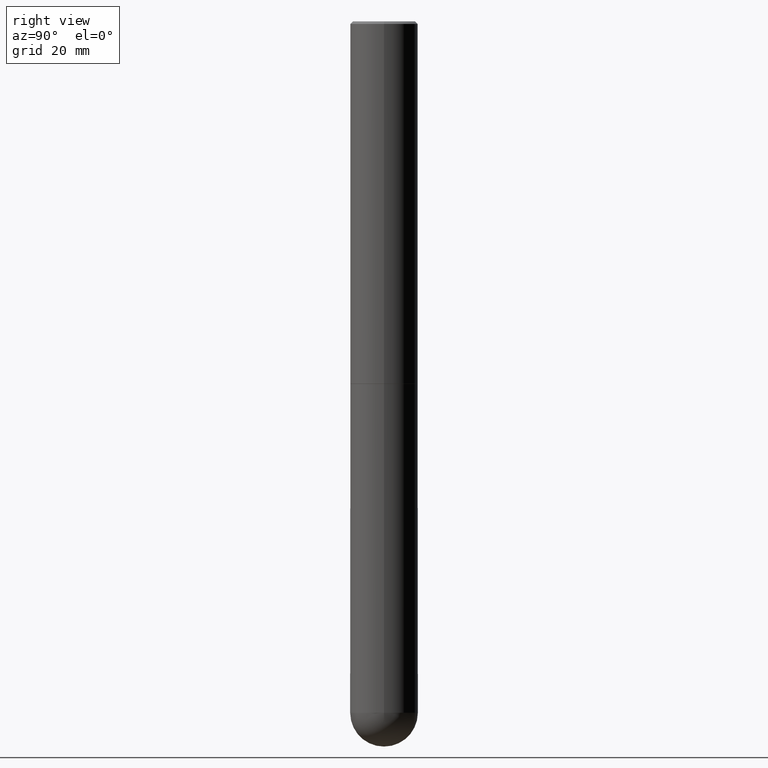
[diagram: clean part render]
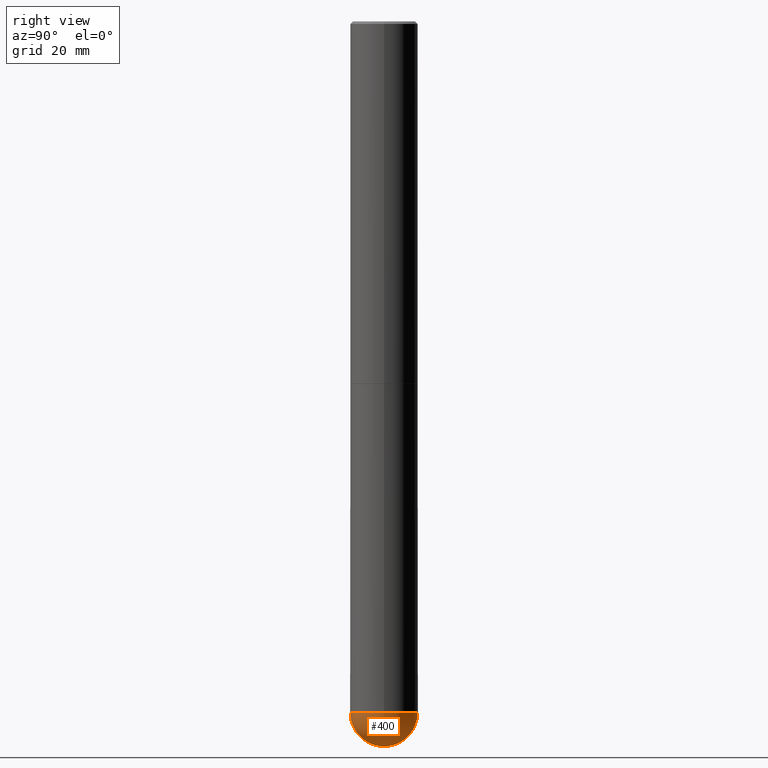
[diagram: same view with one face highlighted and labeled with its STEP entity id]
A machine part, right view. The second image highlights one B-rep face of the part: STEP entity #400.
In plain terms, the highlighted spherical surface has radius 7.0002 mm.
Its self-contained STEP definition (entity closure, byte-faithful):
#10 = CARTESIAN_POINT ( 'NONE',  ( -1.958255779754700116E-15, -0.2756000000000199956, -5.629899999999999238 ) ) ;
#18 = DIRECTION ( 'NONE',  ( 6.982962677686265922E-15, 1.000000000000000000, -3.964946289788479319E-15 ) ) ;
#22 = DIRECTION ( 'NONE',  ( 1.000000000000000000, -6.982962677686264344E-15, 0.000000000000000000 ) ) ;
#30 = VERTEX_POINT ( 'NONE', #10 ) ;
#41 = CARTESIAN_POINT ( 'NONE',  ( 1.412238044847732931E-28, -2.107624978178599697E-14, -5.905499999999999972 ) ) ;
#43 = DIRECTION ( 'NONE',  ( 6.982962677686267499E-15, 1.000000000000000000, 0.000000000000000000 ) ) ;
#48 = AXIS2_PLACEMENT_3D ( 'NONE', #185, #311, #22 ) ;
#59 = VERTEX_POINT ( 'NONE', #73 ) ;
#73 = CARTESIAN_POINT ( 'NONE',  ( 1.924504513970471427E-15, 0.2755999999999801942, -5.629900000000001015 ) ) ;
#82 = AXIS2_PLACEMENT_3D ( 'NONE', #247, #275, #84 ) ;
#84 = DIRECTION ( 'NONE',  ( -7.105427357601001859E-15, -1.000000000000000000, 0.000000000000000000 ) ) ;
#100 = EDGE_CURVE ( 'NONE', #30, #286, #175, .T. ) ;
#106 = AXIS2_PLACEMENT_3D ( 'NONE', #147, #264, #43 ) ;
#123 = VERTEX_POINT ( 'NONE', #41 ) ;
#131 = CIRCLE ( 'NONE', #48, 0.2756000000000000671 ) ;
#141 = AXIS2_PLACEMENT_3D ( 'NONE', #300, #177, #18 ) ;
#147 = CARTESIAN_POINT ( 'NONE',  ( 1.343662505402781410E-28, -2.013087315769307636E-14, -5.629900000000000126 ) ) ;
#155 = CIRCLE ( 'NONE', #106, 0.2756000000000000671 ) ;
#162 = EDGE_LOOP ( 'NONE', ( #332, #220, #274, #276 ) ) ;
#173 = EDGE_CURVE ( 'NONE', #123, #30, #182, .T. ) ;
#175 = CIRCLE ( 'NONE', #196, 0.2756000000000000671 ) ;
#177 = DIRECTION ( 'NONE',  ( -1.000000000000000000, 6.982962677686265922E-15, -4.883557194083112901E-29 ) ) ;
#182 = CIRCLE ( 'NONE', #82, 0.2756000000000000671 ) ;
#185 = CARTESIAN_POINT ( 'NONE',  ( 1.376774483194169922E-28, -1.965669078955302449E-14, -5.629900000000000126 ) ) ;
#187 = EDGE_CURVE ( 'NONE', #286, #59, #131, .T. ) ;
#196 = AXIS2_PLACEMENT_3D ( 'NONE', #397, #201, #257 ) ;
#201 = DIRECTION ( 'NONE',  ( -2.445468806185136597E-29, 3.491481338843145583E-15, 1.000000000000000000 ) ) ;
#220 = ORIENTED_EDGE ( 'NONE', *, *, #409, .T. ) ;
#227 = CARTESIAN_POINT ( 'NONE',  ( 0.2756000000000000671, -1.690749838334792865E-14, -5.629900000000000126 ) ) ;
#247 = CARTESIAN_POINT ( 'NONE',  ( 1.343662505402781410E-28, -2.013087315769307636E-14, -5.629900000000000126 ) ) ;
#257 = DIRECTION ( 'NONE',  ( 1.000000000000000000, -6.982962677686264344E-15, 0.000000000000000000 ) ) ;
#264 = DIRECTION ( 'NONE',  ( 1.000000000000000000, -6.982962677686265922E-15, 4.883557194083112340E-29 ) ) ;
#274 = ORIENTED_EDGE ( 'NONE', *, *, #187, .F. ) ;
#275 = DIRECTION ( 'NONE',  ( -1.000000000000000000, 7.105427357601001070E-15, -4.926315508542082329E-29 ) ) ;
#276 = ORIENTED_EDGE ( 'NONE', *, *, #100, .F. ) ;
#286 = VERTEX_POINT ( 'NONE', #227 ) ;
#300 = CARTESIAN_POINT ( 'NONE',  ( 1.343662505402781410E-28, -2.013087315769307636E-14, -5.629900000000000126 ) ) ;
#308 = FACE_OUTER_BOUND ( 'NONE', #162, .T. ) ;
#311 = DIRECTION ( 'NONE',  ( -2.445468806185136597E-29, 3.491481338843145583E-15, 1.000000000000000000 ) ) ;
#332 = ORIENTED_EDGE ( 'NONE', *, *, #173, .F. ) ;
#368 = SPHERICAL_SURFACE ( 'NONE', #141, 0.2756000000000000671 ) ;
#397 = CARTESIAN_POINT ( 'NONE',  ( 1.376774483194169922E-28, -1.965669078955302449E-14, -5.629900000000000126 ) ) ;
#400 = ADVANCED_FACE ( 'NONE', ( #308 ), #368, .T. ) ;
#409 = EDGE_CURVE ( 'NONE', #123, #59, #155, .T. ) ;